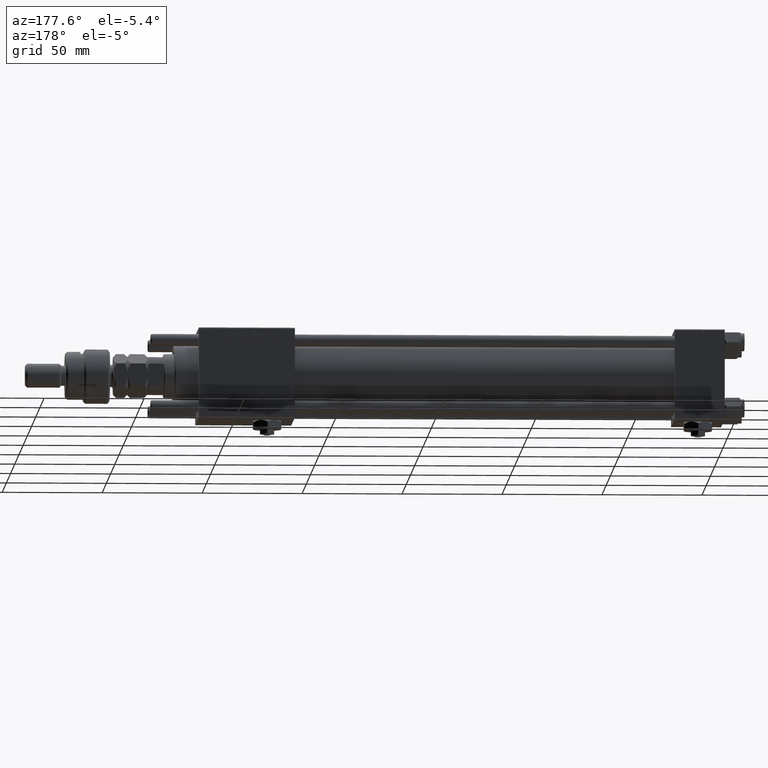
[diagram: clean part render]
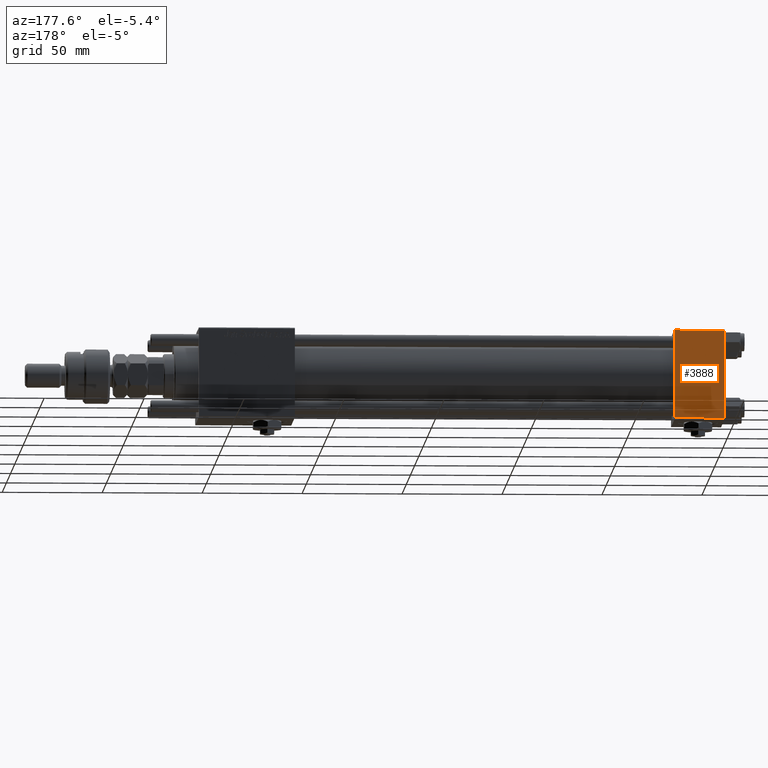
[diagram: same view with one face highlighted and labeled with its STEP entity id]
A machine part, auxiliary view. The second image highlights one B-rep face of the part: STEP entity #3888.
In plain terms, the highlighted planar face has unit normal (0, 1, 0).
Its self-contained STEP definition (entity closure, byte-faithful):
#1682 = DIRECTION ( 'NONE',  ( 0.000000000000000000, -0.000000000000000000, 1.000000000000000000 ) ) ;
#3062 = DIRECTION ( 'NONE',  ( -1.000000000000000000, 0.000000000000000000, 0.000000000000000000 ) ) ;
#3888 = ADVANCED_FACE ( 'NONE', ( #9468 ), #56887, .T. ) ;
#4252 = LINE ( 'NONE', #33557, #40821 ) ;
#5785 = CARTESIAN_POINT ( 'NONE',  ( 25.00000000000000000, 22.50000000000000000, 21.99999999999999645 ) ) ;
#6073 = EDGE_CURVE ( 'NONE', #56018, #32822, #53840, .T. ) ;
#6764 = EDGE_CURVE ( 'NONE', #34764, #32822, #55147, .T. ) ;
#8252 = EDGE_CURVE ( 'NONE', #56018, #41305, #19307, .T. ) ;
#9468 = FACE_OUTER_BOUND ( 'NONE', #17073, .T. ) ;
#10577 = DIRECTION ( 'NONE',  ( 1.000000000000000000, 0.000000000000000000, 0.000000000000000000 ) ) ;
#11667 = AXIS2_PLACEMENT_3D ( 'NONE', #14156, #33170, #1682 ) ;
#14156 = CARTESIAN_POINT ( 'NONE',  ( 25.00000000000000000, 22.50000000000000000, 22.50000000000000355 ) ) ;
#14224 = DIRECTION ( 'NONE',  ( 0.000000000000000000, 0.000000000000000000, -1.000000000000000000 ) ) ;
#17073 = EDGE_LOOP ( 'NONE', ( #45927, #56837, #29102, #21324 ) ) ;
#19307 = LINE ( 'NONE', #34275, #19812 ) ;
#19812 = VECTOR ( 'NONE', #10577, 1000.000000000000000 ) ;
#21324 = ORIENTED_EDGE ( 'NONE', *, *, #8252, .T. ) ;
#23825 = CARTESIAN_POINT ( 'NONE',  ( 0.000000000000000000, 22.50000000000000000, -21.99999999999996803 ) ) ;
#29102 = ORIENTED_EDGE ( 'NONE', *, *, #6073, .F. ) ;
#31648 = VECTOR ( 'NONE', #43870, 1000.000000000000000 ) ;
#32822 = VERTEX_POINT ( 'NONE', #23825 ) ;
#33170 = DIRECTION ( 'NONE',  ( -0.000000000000000000, 1.000000000000000000, 0.000000000000000000 ) ) ;
#33557 = CARTESIAN_POINT ( 'NONE',  ( 25.00000000000000000, 22.50000000000000000, 22.50000000000000355 ) ) ;
#33875 = CARTESIAN_POINT ( 'NONE',  ( 0.000000000000000000, 22.50000000000000000, 22.50000000000000355 ) ) ;
#34275 = CARTESIAN_POINT ( 'NONE',  ( 25.00000000000000000, 22.50000000000000000, 21.99999999999999645 ) ) ;
#34764 = VERTEX_POINT ( 'NONE', #50703 ) ;
#36389 = EDGE_CURVE ( 'NONE', #41305, #34764, #4252, .T. ) ;
#36742 = CARTESIAN_POINT ( 'NONE',  ( 25.00000000000000000, 22.50000000000000000, -21.99999999999998224 ) ) ;
#40821 = VECTOR ( 'NONE', #14224, 1000.000000000000000 ) ;
#41305 = VERTEX_POINT ( 'NONE', #5785 ) ;
#43870 = DIRECTION ( 'NONE',  ( 0.000000000000000000, 0.000000000000000000, -1.000000000000000000 ) ) ;
#45927 = ORIENTED_EDGE ( 'NONE', *, *, #36389, .T. ) ;
#48650 = VECTOR ( 'NONE', #3062, 1000.000000000000000 ) ;
#49076 = CARTESIAN_POINT ( 'NONE',  ( 0.000000000000000000, 22.50000000000000000, 21.99999999999999645 ) ) ;
#50703 = CARTESIAN_POINT ( 'NONE',  ( 25.00000000000000000, 22.50000000000000000, -21.99999999999996803 ) ) ;
#53840 = LINE ( 'NONE', #33875, #31648 ) ;
#55147 = LINE ( 'NONE', #36742, #48650 ) ;
#56018 = VERTEX_POINT ( 'NONE', #49076 ) ;
#56837 = ORIENTED_EDGE ( 'NONE', *, *, #6764, .T. ) ;
#56887 = PLANE ( 'NONE',  #11667 ) ;